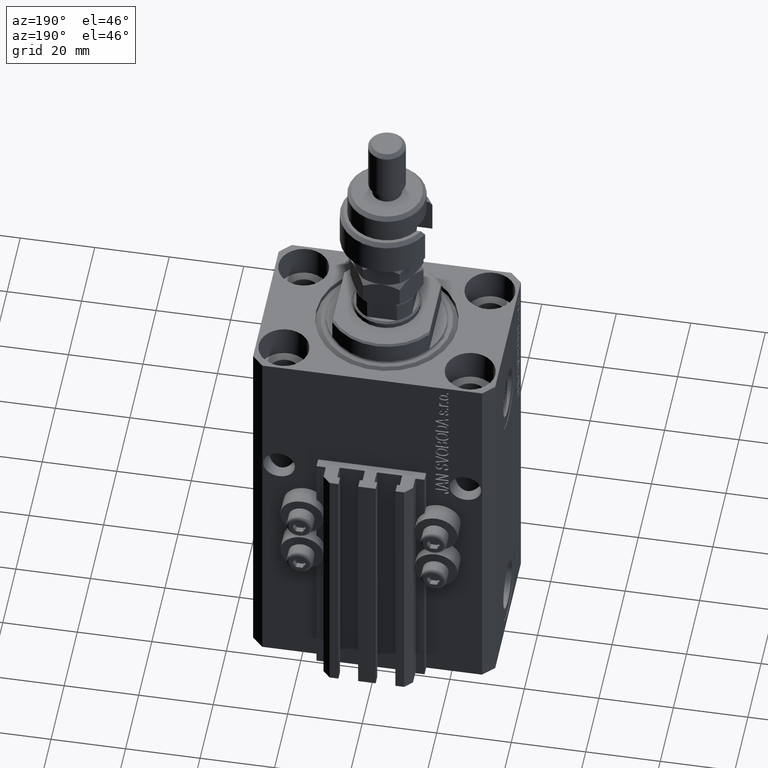
[diagram: clean part render]
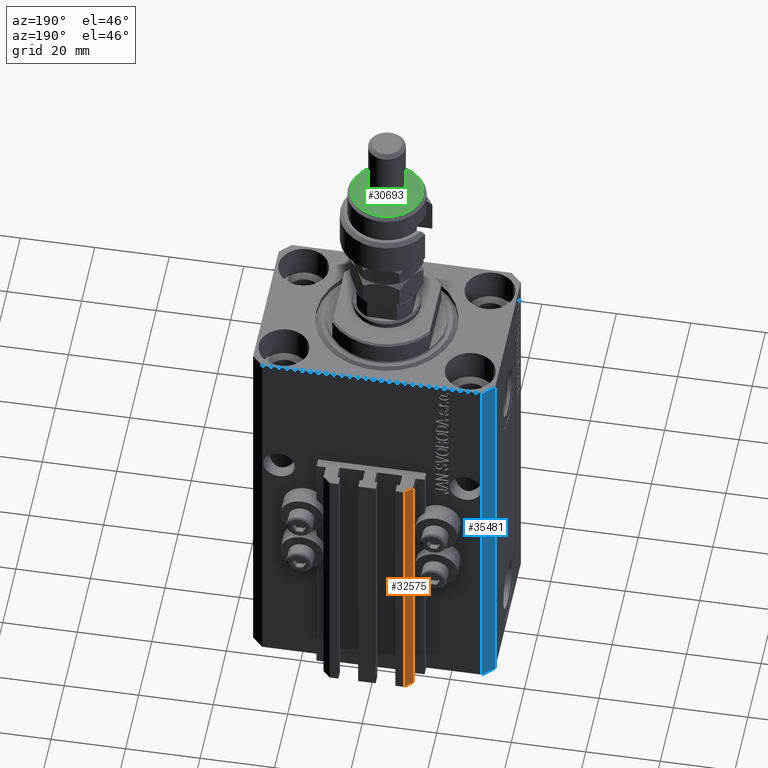
[diagram: same view with three faces highlighted in distinct colors, each labeled with its STEP entity id]
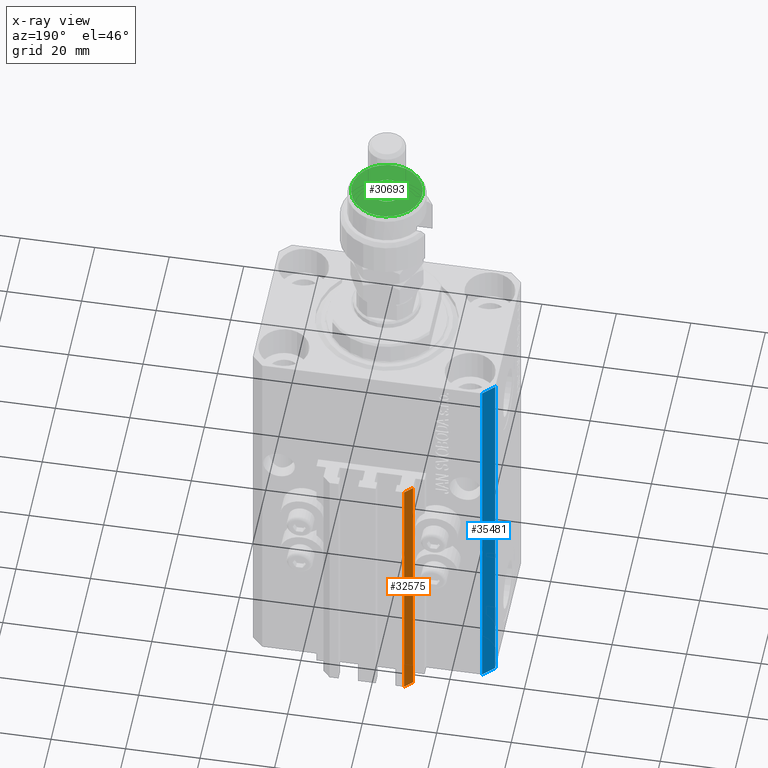
[diagram: x-ray of the same camera — body ghosted, the three highlighted faces saturated]
A machine part, auxiliary view with three faces highlighted in distinct colors.
The next image is the same camera in x-ray (body ghosted, the three faces saturated) — at least one of them is partly hidden behind the body in this view.
Their STEP definitions:

[orange] entity #32575 — the highlighted planar face has unit normal (-0.7071, 0.7071, 0).
#1440 = AXIS2_PLACEMENT_3D ( 'NONE', #9905, #2063, #40486 ) ;
#1463 = DIRECTION ( 'NONE',  ( -0.7071067811865472397, -0.7071067811865479058, 0.000000000000000000 ) ) ;
#2063 = DIRECTION ( 'NONE',  ( -0.7071067811865479058, 0.7071067811865472397, 0.000000000000000000 ) ) ;
#4193 = DIRECTION ( 'NONE',  ( 0.000000000000000000, 0.000000000000000000, 1.000000000000000000 ) ) ;
#4202 = LINE ( 'NONE', #26933, #41099 ) ;
#5546 = LINE ( 'NONE', #40158, #33483 ) ;
#9905 = CARTESIAN_POINT ( 'NONE',  ( -10.00000000000000000, 30.49999999999948841, -107.0000000000000000 ) ) ;
#11042 = EDGE_CURVE ( 'NONE', #23481, #15354, #5546, .T. ) ;
#12435 = DIRECTION ( 'NONE',  ( 0.000000000000000000, 0.000000000000000000, 1.000000000000000000 ) ) ;
#13420 = ORIENTED_EDGE ( 'NONE', *, *, #40395, .F. ) ;
#14402 = CARTESIAN_POINT ( 'NONE',  ( -10.00000000000000000, 30.49999999999948841, -33.00000000000000000 ) ) ;
#15354 = VERTEX_POINT ( 'NONE', #22812 ) ;
#17097 = ORIENTED_EDGE ( 'NONE', *, *, #43950, .F. ) ;
#22812 = CARTESIAN_POINT ( 'NONE',  ( -12.00000000000000000, 28.49999999999948841, -33.00000000000000000 ) ) ;
#22972 = ORIENTED_EDGE ( 'NONE', *, *, #11042, .T. ) ;
#23481 = VERTEX_POINT ( 'NONE', #41065 ) ;
#25551 = PLANE ( 'NONE',  #1440 ) ;
#26933 = CARTESIAN_POINT ( 'NONE',  ( -10.00000000000000000, 30.49999999999948841, -107.0000000000000000 ) ) ;
#28141 = VECTOR ( 'NONE', #1463, 999.9999999999998863 ) ;
#28810 = VERTEX_POINT ( 'NONE', #14402 ) ;
#31474 = LINE ( 'NONE', #39300, #37020 ) ;
#31595 = EDGE_LOOP ( 'NONE', ( #13420, #17097, #37943, #22972 ) ) ;
#31739 = DIRECTION ( 'NONE',  ( -0.7071067811865472397, -0.7071067811865479058, 0.000000000000000000 ) ) ;
#32575 = ADVANCED_FACE ( 'NONE', ( #32646 ), #25551, .T. ) ;
#32646 = FACE_OUTER_BOUND ( 'NONE', #31595, .T. ) ;
#33483 = VECTOR ( 'NONE', #12435, 1000.000000000000000 ) ;
#35572 = CARTESIAN_POINT ( 'NONE',  ( -10.00000000000000000, 30.49999999999948841, -33.00000000000000000 ) ) ;
#37020 = VECTOR ( 'NONE', #4193, 1000.000000000000000 ) ;
#37943 = ORIENTED_EDGE ( 'NONE', *, *, #44839, .T. ) ;
#39239 = VERTEX_POINT ( 'NONE', #45459 ) ;
#39300 = CARTESIAN_POINT ( 'NONE',  ( -10.00000000000000000, 30.49999999999948841, -107.0000000000000000 ) ) ;
#40158 = CARTESIAN_POINT ( 'NONE',  ( -12.00000000000000000, 28.49999999999948841, -107.0000000000000000 ) ) ;
#40395 = EDGE_CURVE ( 'NONE', #28810, #15354, #46670, .T. ) ;
#40486 = DIRECTION ( 'NONE',  ( -0.7071067811865472397, -0.7071067811865479058, 0.000000000000000000 ) ) ;
#41065 = CARTESIAN_POINT ( 'NONE',  ( -12.00000000000000000, 28.49999999999948841, -107.0000000000000000 ) ) ;
#41099 = VECTOR ( 'NONE', #31739, 999.9999999999998863 ) ;
#43950 = EDGE_CURVE ( 'NONE', #39239, #28810, #31474, .T. ) ;
#44839 = EDGE_CURVE ( 'NONE', #39239, #23481, #4202, .T. ) ;
#45459 = CARTESIAN_POINT ( 'NONE',  ( -10.00000000000000000, 30.49999999999948841, -107.0000000000000000 ) ) ;
#46670 = LINE ( 'NONE', #35572, #28141 ) ;

[blue] entity #35481 — the highlighted planar face has unit normal (-0.7071, 0.7071, 0).
#251 = CARTESIAN_POINT ( 'NONE',  ( -29.49999999999650413, 22.49999999999949907, 0.000000000000000000 ) ) ;
#1480 = DIRECTION ( 'NONE',  ( -0.7071067811865474617, -0.7071067811865474617, 0.000000000000000000 ) ) ;
#2479 = CARTESIAN_POINT ( 'NONE',  ( -29.49999999999650413, 22.49999999999949907, -107.0000000000000000 ) ) ;
#5090 = DIRECTION ( 'NONE',  ( -0.7071067811865474617, -0.7071067811865474617, 0.000000000000000000 ) ) ;
#5342 = FACE_OUTER_BOUND ( 'NONE', #37011, .T. ) ;
#9879 = PLANE ( 'NONE',  #43519 ) ;
#10250 = VECTOR ( 'NONE', #35908, 1000.000000000000114 ) ;
#10263 = VERTEX_POINT ( 'NONE', #33547 ) ;
#10829 = EDGE_CURVE ( 'NONE', #10263, #16223, #17785, .T. ) ;
#12044 = VERTEX_POINT ( 'NONE', #251 ) ;
#13687 = ORIENTED_EDGE ( 'NONE', *, *, #30506, .F. ) ;
#16179 = ORIENTED_EDGE ( 'NONE', *, *, #18659, .T. ) ;
#16204 = ORIENTED_EDGE ( 'NONE', *, *, #10829, .T. ) ;
#16223 = VERTEX_POINT ( 'NONE', #46844 ) ;
#17214 = DIRECTION ( 'NONE',  ( -0.7071067811865475727, 0.7071067811865475727, 0.000000000000000000 ) ) ;
#17785 = LINE ( 'NONE', #33187, #32697 ) ;
#18659 = EDGE_CURVE ( 'NONE', #40783, #10263, #47944, .T. ) ;
#18708 = VECTOR ( 'NONE', #26203, 1000.000000000000000 ) ;
#24485 = VECTOR ( 'NONE', #1480, 1000.000000000000114 ) ;
#24531 = CARTESIAN_POINT ( 'NONE',  ( -29.49999999999650413, 22.49999999999949907, -107.0000000000000000 ) ) ;
#26203 = DIRECTION ( 'NONE',  ( 0.000000000000000000, 0.000000000000000000, 1.000000000000000000 ) ) ;
#26573 = CARTESIAN_POINT ( 'NONE',  ( -29.49999999999650413, 22.49999999999949907, 0.000000000000000000 ) ) ;
#30352 = LINE ( 'NONE', #26573, #10250 ) ;
#30506 = EDGE_CURVE ( 'NONE', #12044, #16223, #30352, .T. ) ;
#32697 = VECTOR ( 'NONE', #48588, 1000.000000000000000 ) ;
#33187 = CARTESIAN_POINT ( 'NONE',  ( -32.49999999999650413, 19.49999999999949907, -107.0000000000000000 ) ) ;
#33547 = CARTESIAN_POINT ( 'NONE',  ( -32.49999999999650413, 19.49999999999949907, -107.0000000000000000 ) ) ;
#35481 = ADVANCED_FACE ( 'NONE', ( #5342 ), #9879, .T. ) ;
#35908 = DIRECTION ( 'NONE',  ( -0.7071067811865474617, -0.7071067811865474617, 0.000000000000000000 ) ) ;
#36598 = CARTESIAN_POINT ( 'NONE',  ( -29.49999999999650413, 22.49999999999949907, -107.0000000000000000 ) ) ;
#37011 = EDGE_LOOP ( 'NONE', ( #13687, #43661, #16179, #16204 ) ) ;
#40783 = VERTEX_POINT ( 'NONE', #42068 ) ;
#42068 = CARTESIAN_POINT ( 'NONE',  ( -29.49999999999650413, 22.49999999999949907, -107.0000000000000000 ) ) ;
#43519 = AXIS2_PLACEMENT_3D ( 'NONE', #24531, #17214, #5090 ) ;
#43661 = ORIENTED_EDGE ( 'NONE', *, *, #48940, .F. ) ;
#46844 = CARTESIAN_POINT ( 'NONE',  ( -32.49999999999650413, 19.49999999999949907, 0.000000000000000000 ) ) ;
#47944 = LINE ( 'NONE', #2479, #24485 ) ;
#48588 = DIRECTION ( 'NONE',  ( 0.000000000000000000, 0.000000000000000000, 1.000000000000000000 ) ) ;
#48940 = EDGE_CURVE ( 'NONE', #40783, #12044, #48952, .T. ) ;
#48952 = LINE ( 'NONE', #36598, #18708 ) ;

[green] entity #30693 — the highlighted planar face has unit normal (0, 0, 1).
#1345 = DIRECTION ( 'NONE',  ( 0.000000000000000000, 0.000000000000000000, 1.000000000000000000 ) ) ;
#2559 = EDGE_LOOP ( 'NONE', ( #17788, #41516 ) ) ;
#4298 = CIRCLE ( 'NONE', #43821, 4.000000000000000000 ) ;
#4339 = EDGE_LOOP ( 'NONE', ( #42307, #22622 ) ) ;
#5076 = DIRECTION ( 'NONE',  ( 0.000000000000000000, 0.000000000000000000, 1.000000000000000000 ) ) ;
#5089 = DIRECTION ( 'NONE',  ( 1.000000000000000000, 0.000000000000000000, -0.000000000000000000 ) ) ;
#6545 = CARTESIAN_POINT ( 'NONE',  ( 9.500000000000001776, 1.224646799147353256E-15, 19.00000000000000000 ) ) ;
#7982 = VERTEX_POINT ( 'NONE', #47146 ) ;
#10532 = CIRCLE ( 'NONE', #13785, 4.000000000000000000 ) ;
#13785 = AXIS2_PLACEMENT_3D ( 'NONE', #20987, #5076, #47497 ) ;
#14356 = CARTESIAN_POINT ( 'NONE',  ( -9.500000000000001776, 0.000000000000000000, 19.00000000000000000 ) ) ;
#14587 = AXIS2_PLACEMENT_3D ( 'NONE', #27121, #30404, #19556 ) ;
#14790 = EDGE_CURVE ( 'NONE', #27649, #7982, #4298, .T. ) ;
#15851 = VERTEX_POINT ( 'NONE', #6545 ) ;
#16138 = CARTESIAN_POINT ( 'NONE',  ( 0.000000000000000000, 0.000000000000000000, 19.00000000000000000 ) ) ;
#16464 = DIRECTION ( 'NONE',  ( 0.000000000000000000, 0.000000000000000000, 1.000000000000000000 ) ) ;
#16671 = AXIS2_PLACEMENT_3D ( 'NONE', #31924, #1345, #35716 ) ;
#17788 = ORIENTED_EDGE ( 'NONE', *, *, #29448, .T. ) ;
#19556 = DIRECTION ( 'NONE',  ( 1.000000000000000000, 0.000000000000000000, 0.000000000000000000 ) ) ;
#20211 = CIRCLE ( 'NONE', #14587, 9.500000000000001776 ) ;
#20987 = CARTESIAN_POINT ( 'NONE',  ( 0.000000000000000000, 0.000000000000000000, 19.00000000000000000 ) ) ;
#22364 = AXIS2_PLACEMENT_3D ( 'NONE', #27565, #16464, #5089 ) ;
#22622 = ORIENTED_EDGE ( 'NONE', *, *, #14790, .F. ) ;
#23736 = VERTEX_POINT ( 'NONE', #14356 ) ;
#27121 = CARTESIAN_POINT ( 'NONE',  ( 0.000000000000000000, 0.000000000000000000, 19.00000000000000000 ) ) ;
#27565 = CARTESIAN_POINT ( 'NONE',  ( 0.000000000000000000, 0.000000000000000000, 19.00000000000000000 ) ) ;
#27649 = VERTEX_POINT ( 'NONE', #29537 ) ;
#29448 = EDGE_CURVE ( 'NONE', #23736, #15851, #47300, .T. ) ;
#29537 = CARTESIAN_POINT ( 'NONE',  ( 4.000000000000000000, 4.898587196589412829E-16, 19.00000000000000000 ) ) ;
#30404 = DIRECTION ( 'NONE',  ( 0.000000000000000000, 0.000000000000000000, 1.000000000000000000 ) ) ;
#30693 = ADVANCED_FACE ( 'NONE', ( #31618, #35148 ), #46754, .T. ) ;
#31554 = DIRECTION ( 'NONE',  ( 1.000000000000000000, 0.000000000000000000, 0.000000000000000000 ) ) ;
#31618 = FACE_OUTER_BOUND ( 'NONE', #2559, .T. ) ;
#31810 = DIRECTION ( 'NONE',  ( 0.000000000000000000, 0.000000000000000000, 1.000000000000000000 ) ) ;
#31924 = CARTESIAN_POINT ( 'NONE',  ( 0.000000000000000000, 0.000000000000000000, 19.00000000000000000 ) ) ;
#35148 = FACE_BOUND ( 'NONE', #4339, .T. ) ;
#35716 = DIRECTION ( 'NONE',  ( 1.000000000000000000, 0.000000000000000000, 0.000000000000000000 ) ) ;
#37939 = EDGE_CURVE ( 'NONE', #7982, #27649, #10532, .T. ) ;
#41516 = ORIENTED_EDGE ( 'NONE', *, *, #46962, .T. ) ;
#42307 = ORIENTED_EDGE ( 'NONE', *, *, #37939, .F. ) ;
#43821 = AXIS2_PLACEMENT_3D ( 'NONE', #16138, #31810, #31554 ) ;
#46754 = PLANE ( 'NONE',  #22364 ) ;
#46962 = EDGE_CURVE ( 'NONE', #15851, #23736, #20211, .T. ) ;
#47146 = CARTESIAN_POINT ( 'NONE',  ( -4.000000000000000000, 0.000000000000000000, 19.00000000000000000 ) ) ;
#47300 = CIRCLE ( 'NONE', #16671, 9.500000000000001776 ) ;
#47497 = DIRECTION ( 'NONE',  ( 1.000000000000000000, 0.000000000000000000, 0.000000000000000000 ) ) ;